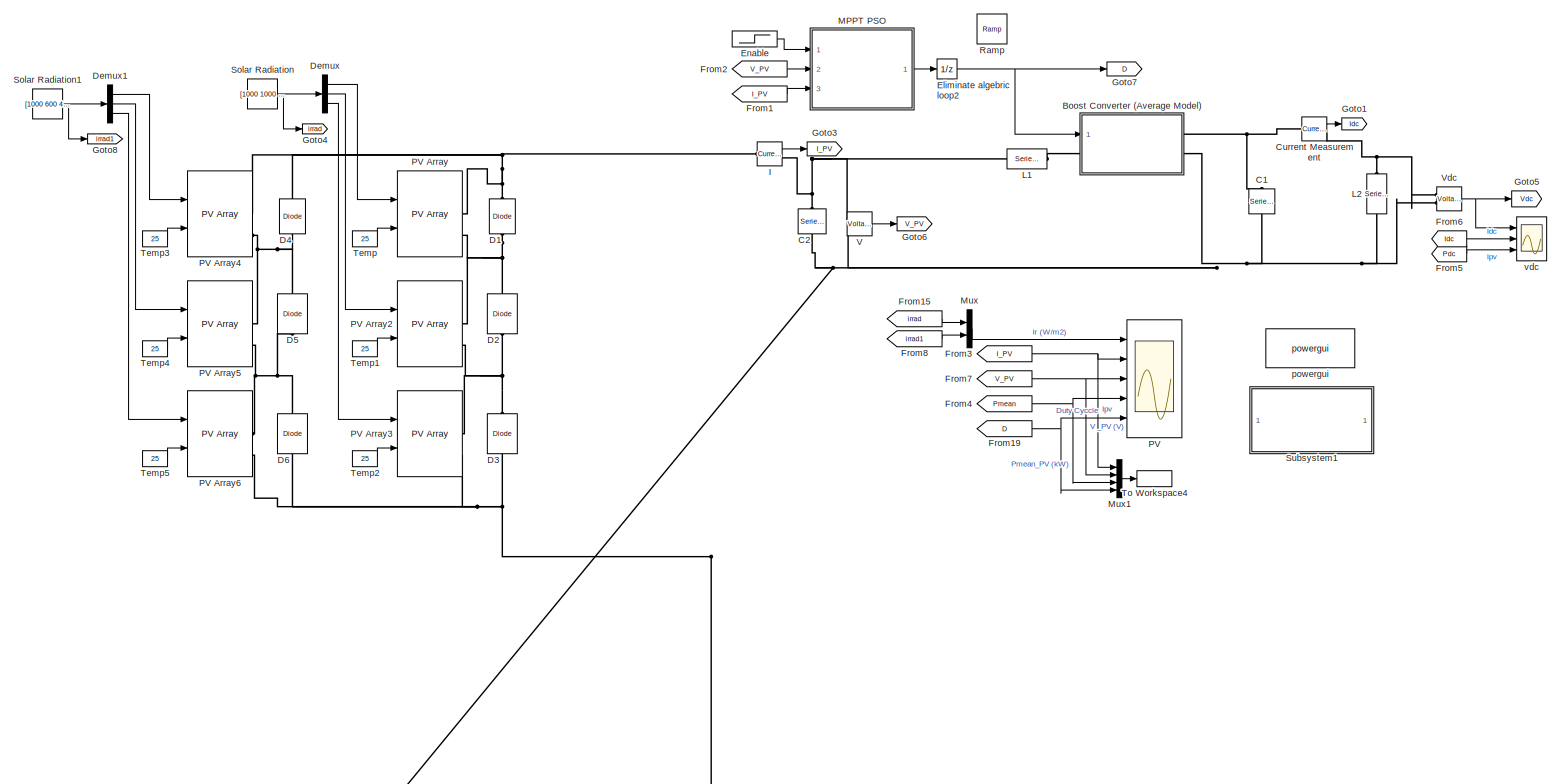
[diagram: root canvas - part 1/1, most of the canvas]
MODEL slx_ef682e9ec535
KIND model
CONFIG AbsTol = auto
CONFIG EnableMultiTasking = off
CONFIG FixedStep = auto
CONFIG MaxStep = auto
CONFIG MinStep = auto
CONFIG PreLoadFcn = Ts_Power=50e-6;\nTs_Control=100e-6;\n\n\n
CONFIG RelTol = 1e-8
CONFIG SampleTimeConstraint = Unconstrained
CONFIG Solver = VariableStepAuto
CONFIG SolverName = VariableStepAuto
CONFIG StartTime = 0.0
CONFIG StopFcn = clear C\nC(1,:)={'Iterac',saveIte(1,1),saveIte(1,2),saveIte(1,3),saveIte(1,4)};\nC(2,:)={'Time (sec)',saveIte(2,1),saveIte(2,2),saveIte(2,3),saveIte(2,4)};\nC(3,:)={'Pmax',saveIte(3,1),saveIte(3,2),saveIte(3,3),saveIte(3,4)};\nC(4,:)={'Duty',saveIte(4,1),saveIte(4,2),saveIte(4,3),saveIte(4,4)};\nC(5,:)={'When',saveIte(5,1)*0.1,saveIte(5,2)*0.1,saveIte(5,3)*0.1,saveIte(5,4)*0.1};\nC(6,:)={'Tolerac',saveI...<+61ch>
CONFIG StopTime = 5
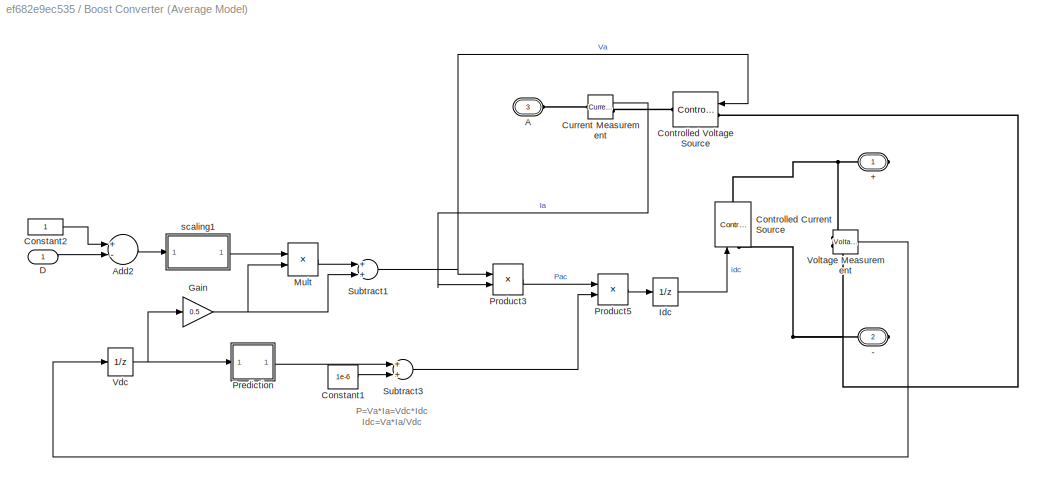
BLOCK [SubSystem] Boost Converter (Average Model)
  Ports = [1, 0, 0, 0, 0, 1, 2]
  RequestExecContextInheritance = off
BLOCK [PMIOPort] Boost Converter (Average Model)/+
  Side = Right
  Tag = PMCPort
BLOCK [PMIOPort] Boost Converter (Average Model)/-
  Port = 2
  Side = Right
  Tag = PMCPort
BLOCK [PMIOPort] Boost Converter (Average Model)/A
  Port = 3
  Side = Left
  Tag = PMCPort
BLOCK [Sum] Boost Converter (Average Model)/Add2
  InputSameDT = off
  Inputs = +-
  OutDataTypeStr = Inherit: Inherit via internal rule
  Ports = [2, 1]
  SaturateOnIntegerOverflow = off
BLOCK [Constant] Boost Converter (Average Model)/Constant1
  Value = 1e-6
BLOCK [Constant] Boost Converter (Average Model)/Constant2
BLOCK [Reference] Boost Converter (Average Model)/Controlled Current Source  REF=powerlib/Electrical
Sources/Controlled Current Source
  Ports = [1, 0, 0, 0, 0, 1, 1]
  SourceBlock = powerlib/Electrical\nSources/Controlled Current Source
  SourceProductBaseCode = PS
  SourceProductName = Simscape Power Systems
  SourceType = Controlled Current Source
BLOCK [Reference] Boost Converter (Average Model)/Controlled Voltage Source  REF=powerlib/Electrical
Sources/Controlled Voltage Source
  Ports = [1, 0, 0, 0, 0, 1, 1]
  SourceBlock = powerlib/Electrical\nSources/Controlled Voltage Source
  SourceProductBaseCode = PS
  SourceProductName = Simscape Power Systems
  SourceType = Controlled Voltage Source
BLOCK [Reference] Boost Converter (Average Model)/Current Measurement  REF=powerlib/Measurements/Current Measurement
  Ports = [0, 1, 0, 0, 0, 1, 1]
  SourceBlock = powerlib/Measurements/Current Measurement
  SourceProductBaseCode = PS
  SourceProductName = Simscape Power Systems
  SourceType = Current Measurement
BLOCK [Inport] Boost Converter (Average Model)/D
  IconDisplay = Port number
BLOCK [Gain] Boost Converter (Average Model)/Gain
  Gain = 0.5
  OutDataTypeStr = Inherit: Inherit via internal rule
  ParamDataTypeStr = Inherit: Inherit via internal rule
  SaturateOnIntegerOverflow = off
BLOCK [UnitDelay] Boost Converter (Average Model)/Idc
  SampleTime = Ts
BLOCK [Product] Boost Converter (Average Model)/Mult
  InputSameDT = off
  Inputs = **
  OutDataTypeStr = Inherit: Inherit via internal rule
  Ports = [2, 1]
  RndMeth = Floor
  SaturateOnIntegerOverflow = off
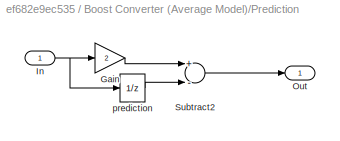
BLOCK [SubSystem] Boost Converter (Average Model)/Prediction
  Ports = [1, 1]
  RequestExecContextInheritance = off
BLOCK [Gain] Boost Converter (Average Model)/Prediction/Gain
  Gain = 2
  OutDataTypeStr = Inherit: Inherit via internal rule
  ParamDataTypeStr = Inherit: Inherit via internal rule
  SaturateOnIntegerOverflow = off
BLOCK [Inport] Boost Converter (Average Model)/Prediction/In
  IconDisplay = Port number
BLOCK [Outport] Boost Converter (Average Model)/Prediction/Out
  IconDisplay = Port number
BLOCK [Sum] Boost Converter (Average Model)/Prediction/Subtract2
  InputSameDT = off
  Inputs = +-
  OutDataTypeStr = Inherit: Inherit via internal rule
  Ports = [2, 1]
  SaturateOnIntegerOverflow = off
BLOCK [UnitDelay] Boost Converter (Average Model)/Prediction/prediction
  SampleTime = Ts
BLOCK [Product] Boost Converter (Average Model)/Product3
  InputSameDT = off
  OutDataTypeStr = Inherit: Inherit via internal rule
  Ports = [2, 1]
  SaturateOnIntegerOverflow = off
BLOCK [Product] Boost Converter (Average Model)/Product5
  InputSameDT = off
  Inputs = */
  OutDataTypeStr = Inherit: Inherit via internal rule
  Ports = [2, 1]
  SaturateOnIntegerOverflow = off
BLOCK [Sum] Boost Converter (Average Model)/Subtract1
  InputSameDT = off
  OutDataTypeStr = Inherit: Inherit via internal rule
  Ports = [2, 1]
  SaturateOnIntegerOverflow = off
BLOCK [Sum] Boost Converter (Average Model)/Subtract3
  InputSameDT = off
  OutDataTypeStr = Inherit: Inherit via internal rule
  Ports = [2, 1]
  SaturateOnIntegerOverflow = off
BLOCK [UnitDelay] Boost Converter (Average Model)/Vdc
  SampleTime = Ts
BLOCK [Reference] Boost Converter (Average Model)/Voltage Measurement  REF=powerlib/Measurements/Voltage Measurement
  Ports = [0, 1, 0, 0, 0, 2]
  SourceBlock = powerlib/Measurements/Voltage Measurement
  SourceProductBaseCode = PS
  SourceProductName = Simscape Power Systems
  SourceType = Voltage Measurement
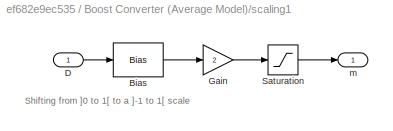
BLOCK [SubSystem] Boost Converter (Average Model)/scaling1
  Ports = [1, 1]
  RequestExecContextInheritance = off
BLOCK [Bias] Boost Converter (Average Model)/scaling1/Bias
  Bias = -0.5
  SaturateOnIntegerOverflow = off
BLOCK [Inport] Boost Converter (Average Model)/scaling1/D
  IconDisplay = Port number
BLOCK [Gain] Boost Converter (Average Model)/scaling1/Gain
  Gain = 2
  OutDataTypeStr = Inherit: Inherit via internal rule
  ParamDataTypeStr = Inherit: Inherit via internal rule
  SaturateOnIntegerOverflow = off
BLOCK [Saturate] Boost Converter (Average Model)/scaling1/Saturation
  InputPortMap = u0
  LowerLimit = -1
  Ports = [1, 1]
  UpperLimit = 1
BLOCK [Outport] Boost Converter (Average Model)/scaling1/m
  IconDisplay = Port number
BLOCK [Reference] C1  REF=powerlib/Elements/Series RLC Branch
  AttributesFormatString = \n
  Ports = [0, 0, 0, 0, 0, 1, 1]
  SourceBlock = powerlib/Elements/Series RLC Branch
  SourceProductBaseCode = PS
  SourceProductName = Simscape Power Systems
  SourceType = Series RLC Branch
BLOCK [Reference] C2  REF=powerlib/Elements/Series RLC Branch
  AttributesFormatString = \n
  Ports = [0, 0, 0, 0, 0, 1, 1]
  SourceBlock = powerlib/Elements/Series RLC Branch
  SourceProductBaseCode = PS
  SourceProductName = Simscape Power Systems
  SourceType = Series RLC Branch
BLOCK [Reference] Current Measurement  REF=powerlib/Measurements/Current Measurement
  Ports = [0, 1, 0, 0, 0, 1, 1]
  SourceBlock = powerlib/Measurements/Current Measurement
  SourceProductBaseCode = PS
  SourceProductName = Simscape Power Systems
  SourceType = Current Measurement
  UserDataPersistent = on
BLOCK [Reference] D1  REF=powerlib/Power
Electronics/Diode
  Ports = [0, 0, 0, 0, 0, 1, 1]
  SourceBlock = powerlib/Power\nElectronics/Diode
  SourceProductBaseCode = PS
  SourceProductName = Simscape Power Systems
  SourceType = Diode
BLOCK [Reference] D2  REF=powerlib/Power
Electronics/Diode
  Ports = [0, 0, 0, 0, 0, 1, 1]
  SourceBlock = powerlib/Power\nElectronics/Diode
  SourceProductBaseCode = PS
  SourceProductName = Simscape Power Systems
  SourceType = Diode
BLOCK [Reference] D3  REF=powerlib/Power
Electronics/Diode
  Ports = [0, 0, 0, 0, 0, 1, 1]
  SourceBlock = powerlib/Power\nElectronics/Diode
  SourceProductBaseCode = PS
  SourceProductName = Simscape Power Systems
  SourceType = Diode
BLOCK [Reference] D4  REF=powerlib/Power
Electronics/Diode
  Ports = [0, 0, 0, 0, 0, 1, 1]
  SourceBlock = powerlib/Power\nElectronics/Diode
  SourceProductBaseCode = PS
  SourceProductName = Simscape Power Systems
  SourceType = Diode
BLOCK [Reference] D5  REF=powerlib/Power
Electronics/Diode
  Ports = [0, 0, 0, 0, 0, 1, 1]
  SourceBlock = powerlib/Power\nElectronics/Diode
  SourceProductBaseCode = PS
  SourceProductName = Simscape Power Systems
  SourceType = Diode
BLOCK [Reference] D6  REF=powerlib/Power
Electronics/Diode
  Ports = [0, 0, 0, 0, 0, 1, 1]
  SourceBlock = powerlib/Power\nElectronics/Diode
  SourceProductBaseCode = PS
  SourceProductName = Simscape Power Systems
  SourceType = Diode
BLOCK [Demux] Demux
  DisplayOption = bar
  Outputs = 3
  Ports = [1, 3]
BLOCK [Demux] Demux1
  DisplayOption = bar
  Outputs = 3
  Ports = [1, 3]
BLOCK [UnitDelay] Eliminate algebric loop2
  InputProcessing = Elements as channels (sample based)
  SampleTime = Ts_Control
BLOCK [Step] Enable
  SampleTime = 0
  Time = 0.01
BLOCK [From] From1
  CloseFcn = tagdialog Close
  GotoTag = I_PV
  TagVisibility = global
BLOCK [From] From15
  CloseFcn = tagdialog Close
  GotoTag = irrad
  TagVisibility = global
BLOCK [From] From19
  CloseFcn = tagdialog Close
  GotoTag = D
  TagVisibility = global
BLOCK [From] From2
  CloseFcn = tagdialog Close
  GotoTag = V_PV
  TagVisibility = global
BLOCK [From] From3
  CloseFcn = tagdialog Close
  GotoTag = I_PV
  TagVisibility = global
BLOCK [From] From4
  CloseFcn = tagdialog Close
  GotoTag = Pmean
  TagVisibility = global
BLOCK [From] From5
  CloseFcn = tagdialog Close
  Commented = on
  GotoTag = Pdc
  TagVisibility = global
BLOCK [From] From6
  CloseFcn = tagdialog Close
  Commented = on
  GotoTag = Idc
  TagVisibility = global
BLOCK [From] From7
  CloseFcn = tagdialog Close
  GotoTag = V_PV
  TagVisibility = global
BLOCK [From] From8
  CloseFcn = tagdialog Close
  GotoTag = irrad1
  TagVisibility = global
BLOCK [Goto] Goto1
  GotoTag = Idc
  TagVisibility = global
BLOCK [Goto] Goto3
  GotoTag = I_PV
  TagVisibility = global
BLOCK [Goto] Goto4
  GotoTag = irrad
  TagVisibility = global
BLOCK [Goto] Goto5
  Commented = on
  GotoTag = Vdc
  TagVisibility = global
BLOCK [Goto] Goto6
  GotoTag = V_PV
  TagVisibility = global
BLOCK [Goto] Goto7
  GotoTag = D
  TagVisibility = global
BLOCK [Goto] Goto8
  GotoTag = irrad1
  TagVisibility = global
BLOCK [Reference] I  REF=powerlib/Measurements/Current Measurement
  Ports = [0, 1, 0, 0, 0, 1, 1]
  SourceBlock = powerlib/Measurements/Current Measurement
  SourceProductBaseCode = PS
  SourceProductName = Simscape Power Systems
  SourceType = Current Measurement
  UserDataPersistent = on
BLOCK [Reference] L1  REF=powerlib/Elements/Series RLC Branch
  Ports = [0, 0, 0, 0, 0, 1, 1]
  SourceBlock = powerlib/Elements/Series RLC Branch
  SourceProductBaseCode = PS
  SourceProductName = Simscape Power Systems
  SourceType = Series RLC Branch
BLOCK [Reference] L2  REF=powerlib/Elements/Series RLC Branch
  Ports = [0, 0, 0, 0, 0, 1, 1]
  SourceBlock = powerlib/Elements/Series RLC Branch
  SourceProductBaseCode = PS
  SourceProductName = Simscape Power Systems
  SourceType = Series RLC Branch
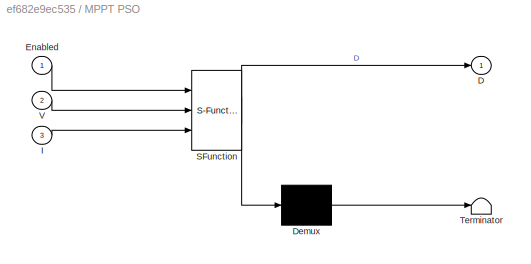
BLOCK [SubSystem] MPPT PSO 
  ErrorFcn = Stateflow.Translate.translate
  PermitHierarchicalResolution = ExplicitOnly
  Ports = [3, 1]
  RequestExecContextInheritance = off
  SFBlockType = MATLAB Function
  SystemSampleTime = 0.1
  TreatAsAtomicUnit = on
BLOCK [Demux] MPPT PSO / Demux 
  Outputs = 1
  Ports = [1, 1]
BLOCK [S-Function] MPPT PSO / SFunction 
  EnableBusSupport = on
  FunctionName = sf_sfun
  PortCounts = [3 2]
  Ports = [3, 2]
  SFcnIsStateOwnerBlock = off
  SFunctionDeploymentMode = off
  Tag = Stateflow S-Function PStest 4
BLOCK [Terminator] MPPT PSO / Terminator 
BLOCK [Outport] MPPT PSO /D
  IconDisplay = Port number
BLOCK [Inport] MPPT PSO /Enabled
  IconDisplay = Port number
BLOCK [Inport] MPPT PSO /I
  IconDisplay = Port number
  Port = 3
BLOCK [Inport] MPPT PSO /V
  IconDisplay = Port number
  Port = 2
BLOCK [Mux] Mux
  DisplayOption = bar
  Inputs = 2
  Ports = [2, 1]
BLOCK [Mux] Mux1
  DisplayOption = bar
  Ports = [4, 1]
BLOCK [Scope] PV
  Floating = off
  NumInputPorts = 5
  Ports = [5]
  ScopeSpecificationString = Simulink.scopes.TimeScopeBlockCfg('CurrentConfiguration', extmgr.ConfigurationSet(extmgr.Configuration('Core','General UI',true),extmgr.Configuration('Core','Source UI',true),extmgr.Configuration('Sources','WiredSimulink',true,'DataLoggingSaveFormat','StructureWithTime','DataLoggingDecimation','20','DataLoggingDecimateData',true,'DataLoggingVariableName','Sal'),extmgr.Configuration('Visuals','Time...<+4463ch>
BLOCK [Reference] PV Array  REF=re_lib/Solar/PV Array
  Ports = [2, 1, 0, 0, 0, 0, 2]
  SourceBlock = re_lib/Solar/PV Array
  SourceProductBaseCode = PS
  SourceProductName = Simscape Power Systems
  SourceType = PV array
BLOCK [Reference] PV Array2  REF=re_lib/Solar/PV Array
  Ports = [2, 1, 0, 0, 0, 0, 2]
  SourceBlock = re_lib/Solar/PV Array
  SourceProductBaseCode = PS
  SourceProductName = Simscape Power Systems
  SourceType = PV array
BLOCK [Reference] PV Array3  REF=re_lib/Solar/PV Array
  Ports = [2, 1, 0, 0, 0, 0, 2]
  SourceBlock = re_lib/Solar/PV Array
  SourceProductBaseCode = PS
  SourceProductName = Simscape Power Systems
  SourceType = PV array
BLOCK [Reference] PV Array4  REF=re_lib/Solar/PV Array
  Ports = [2, 1, 0, 0, 0, 0, 2]
  SourceBlock = re_lib/Solar/PV Array
  SourceProductBaseCode = PS
  SourceProductName = Simscape Power Systems
  SourceType = PV array
BLOCK [Reference] PV Array5  REF=re_lib/Solar/PV Array
  Ports = [2, 1, 0, 0, 0, 0, 2]
  SourceBlock = re_lib/Solar/PV Array
  SourceProductBaseCode = PS
  SourceProductName = Simscape Power Systems
  SourceType = PV array
BLOCK [Reference] PV Array6  REF=re_lib/Solar/PV Array
  Ports = [2, 1, 0, 0, 0, 0, 2]
  SourceBlock = re_lib/Solar/PV Array
  SourceProductBaseCode = PS
  SourceProductName = Simscape Power Systems
  SourceType = PV array
BLOCK [Reference] Ramp  REF=simulink/Sources/Ramp
  Ports = [0, 1]
  SourceBlock = simulink/Sources/Ramp
  SourceProductBaseCode = SL
  SourceProductName = Simulink
  SourceType = Ramp
BLOCK [Constant] Solar Radiation
  Value = [1000 1000 400]
BLOCK [Constant] Solar Radiation1
  Value = [1000 600 400]
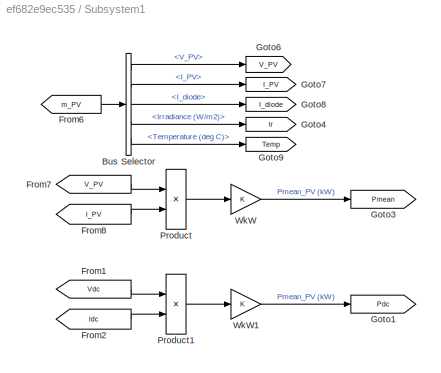
BLOCK [SubSystem] Subsystem1
  Ports = []
  RequestExecContextInheritance = off
BLOCK [BusSelector] Subsystem1/Bus Selector
  Commented = on
  OutputAsBus = off
  OutputSignals = V_PV,I_PV,I_diode,Irradiance (W/m2),Temperature (deg C)
  Ports = [1, 5]
BLOCK [From] Subsystem1/From1
  GotoTag = Vdc
BLOCK [From] Subsystem1/From2
  GotoTag = Idc
  TagVisibility = global
BLOCK [From] Subsystem1/From6
  Commented = on
  GotoTag = m_PV
  TagVisibility = global
BLOCK [From] Subsystem1/From7
  GotoTag = V_PV
  TagVisibility = global
BLOCK [From] Subsystem1/From8
  GotoTag = I_PV
  TagVisibility = global
BLOCK [Goto] Subsystem1/Goto1
  GotoTag = Pdc
  TagVisibility = global
BLOCK [Goto] Subsystem1/Goto3
  GotoTag = Pmean
  TagVisibility = global
BLOCK [Goto] Subsystem1/Goto4
  Commented = on
  GotoTag = Ir
  TagVisibility = global
BLOCK [Goto] Subsystem1/Goto6
  Commented = on
  GotoTag = V_PV
  TagVisibility = global
BLOCK [Goto] Subsystem1/Goto7
  Commented = on
  GotoTag = I_PV
  TagVisibility = global
BLOCK [Goto] Subsystem1/Goto8
  Commented = on
  GotoTag = I_diode
  TagVisibility = global
BLOCK [Goto] Subsystem1/Goto9
  Commented = on
  GotoTag = Temp
  TagVisibility = global
BLOCK [Product] Subsystem1/Product
  InputSameDT = off
  OutDataTypeStr = Inherit: Inherit via internal rule
  Ports = [2, 1]
  SaturateOnIntegerOverflow = off
BLOCK [Product] Subsystem1/Product1
  InputSameDT = off
  OutDataTypeStr = Inherit: Inherit via internal rule
  Ports = [2, 1]
  SaturateOnIntegerOverflow = off
BLOCK [Gain] Subsystem1/WkW
  OutDataTypeStr = Inherit: Inherit via internal rule
  ParamDataTypeStr = Inherit: Inherit via internal rule
  SaturateOnIntegerOverflow = off
BLOCK [Gain] Subsystem1/WkW1
  OutDataTypeStr = Inherit: Inherit via internal rule
  ParamDataTypeStr = Inherit: Inherit via internal rule
  SaturateOnIntegerOverflow = off
BLOCK [Constant] Temp
  Value = 25
BLOCK [Constant] Temp1
  Value = 25
BLOCK [Constant] Temp2
  Value = 25
BLOCK [Constant] Temp3
  Value = 25
BLOCK [Constant] Temp4
  Value = 25
BLOCK [Constant] Temp5
  Value = 25
BLOCK [ToWorkspace] To Workspace4
  Decimation = 10
  FixptAsFi = on
  MaxDataPoints = inf
  Ports = [1]
  SampleTime = 50e-6
  Save2DSignal = 3-D array (concatenate along third dimension)
  SaveFormat = Structure With Time
  VariableName = Salida
BLOCK [Reference] V  REF=powerlib/Measurements/Voltage Measurement
  Ports = [0, 1, 0, 0, 0, 2]
  SourceBlock = powerlib/Measurements/Voltage Measurement
  SourceProductBaseCode = PS
  SourceProductName = Simscape Power Systems
  SourceType = Voltage Measurement
  UserDataPersistent = on
BLOCK [Reference] Vdc   REF=powerlib/Measurements/Voltage Measurement
  AttributesFormatString = \n
  Commented = on
  Ports = [0, 1, 0, 0, 0, 2]
  SourceBlock = powerlib/Measurements/Voltage Measurement
  SourceProductBaseCode = PS
  SourceProductName = Simscape Power Systems
  SourceType = Voltage Measurement
  Tag = PoWeRsYsTeMmEaSuReMeNt
BLOCK [Reference] powergui  REF=powerlib/powergui
  Ports = []
  Priority = 1
  SourceBlock = powerlib/powergui
  SourceProductBaseCode = PS
  SourceProductName = Simscape Power Systems
  SourceType = PSB option menu block
BLOCK [Scope] vdc
  Commented = on
  Floating = off
  NumInputPorts = 3
  Ports = [3]
  ScopeSpecificationString = Simulink.scopes.TimeScopeBlockCfg('CurrentConfiguration', extmgr.ConfigurationSet(extmgr.Configuration('Core','General UI',true),extmgr.Configuration('Core','Source UI',true),extmgr.Configuration('Sources','WiredSimulink',true,'DataLoggingSaveFormat','Structure','DataLoggingDecimation','1','DataLoggingDecimateData',true,'DataLoggingVariableName','Vdc1','DataLogging',true),extmgr.Configuration('Vis...<+2895ch>
ANNOTATION Boost Converter (Average Model): P=Va*Ia=Vdc*Idc Idc=Va*Ia/Vdc
ANNOTATION Boost Converter (Average Model)/scaling1: Shifting from ]0 to 1[ to a ]-1 to 1[ scale
LINE Boost Converter (Average Model)/Add2:1 -> Boost Converter (Average Model)/scaling1:1
LINE Boost Converter (Average Model)/Constant1:1 -> Boost Converter (Average Model)/Subtract3:2
LINE Boost Converter (Average Model)/Constant2:1 -> Boost Converter (Average Model)/Add2:1
LINE Boost Converter (Average Model)/Current Measurement:1 -> Boost Converter (Average Model)/Product3:2
LINE Boost Converter (Average Model)/D:1 -> Boost Converter (Average Model)/Add2:2
NET Boost Converter (Average Model)/Gain:1 -> Boost Converter (Average Model)/Mult:2, Boost Converter (Average Model)/Subtract1:2
LINE Boost Converter (Average Model)/Idc:1 -> Boost Converter (Average Model)/Controlled Current Source:1
LINE Boost Converter (Average Model)/Mult:1 -> Boost Converter (Average Model)/Subtract1:1
LINE Boost Converter (Average Model)/Prediction/Gain:1 -> Boost Converter (Average Model)/Prediction/Subtract2:1
NET Boost Converter (Average Model)/Prediction/In:1 -> Boost Converter (Average Model)/Prediction/Gain:1, Boost Converter (Average Model)/Prediction/prediction:1
LINE Boost Converter (Average Model)/Prediction/Subtract2:1 -> Boost Converter (Average Model)/Prediction/Out:1
LINE Boost Converter (Average Model)/Prediction/prediction:1 -> Boost Converter (Average Model)/Prediction/Subtract2:2
LINE Boost Converter (Average Model)/Prediction:1 -> Boost Converter (Average Model)/Subtract3:1
LINE Boost Converter (Average Model)/Product3:1 -> Boost Converter (Average Model)/Product5:1
LINE Boost Converter (Average Model)/Product5:1 -> Boost Converter (Average Model)/Idc:1
NET Boost Converter (Average Model)/Subtract1:1 -> Boost Converter (Average Model)/Controlled Voltage Source:1, Boost Converter (Average Model)/Product3:1
LINE Boost Converter (Average Model)/Subtract3:1 -> Boost Converter (Average Model)/Product5:2
NET Boost Converter (Average Model)/Vdc:1 -> Boost Converter (Average Model)/Gain:1, Boost Converter (Average Model)/Prediction:1
LINE Boost Converter (Average Model)/Voltage Measurement:1 -> Boost Converter (Average Model)/Vdc:1
LINE Boost Converter (Average Model)/scaling1/Bias:1 -> Boost Converter (Average Model)/scaling1/Gain:1
LINE Boost Converter (Average Model)/scaling1/D:1 -> Boost Converter (Average Model)/scaling1/Bias:1
LINE Boost Converter (Average Model)/scaling1/Gain:1 -> Boost Converter (Average Model)/scaling1/Saturation:1
LINE Boost Converter (Average Model)/scaling1/Saturation:1 -> Boost Converter (Average Model)/scaling1/m:1
LINE Boost Converter (Average Model)/scaling1:1 -> Boost Converter (Average Model)/Mult:1
LINE Current Measurement:1 -> Goto1:1
LINE Demux1:1 -> PV Array4:1
LINE Demux1:2 -> PV Array5:1
LINE Demux1:3 -> PV Array6:1
LINE Demux:1 -> PV Array:1
LINE Demux:2 -> PV Array2:1
LINE Demux:3 -> PV Array3:1
NET Eliminate algebric loop2:1 -> Boost Converter (Average Model):1, Goto7:1
LINE Enable:1 -> MPPT PSO :1
LINE From15:1 -> Mux:1
NET From19:1 -> Mux1:4, PV:5
LINE From1:1 -> MPPT PSO :3
LINE From2:1 -> MPPT PSO :2
NET From3:1 -> Mux1:1, PV:2
NET From4:1 -> Mux1:3, PV:4
LINE From5:1 -> vdc:3
LINE From6:1 -> vdc:2
NET From7:1 -> Mux1:2, PV:3
LINE From8:1 -> Mux:2
LINE I:1 -> Goto3:1
LINE MPPT PSO :1 -> Eliminate algebric loop2:1
LINE Mux1:1 -> To Workspace4:1
LINE Mux:1 -> PV:1
NET Solar Radiation1:1 -> Demux1:1, Goto8:1
NET Solar Radiation:1 -> Demux:1, Goto4:1
LINE Subsystem1/Bus Selector:1 -> Subsystem1/Goto6:1
LINE Subsystem1/Bus Selector:2 -> Subsystem1/Goto7:1
LINE Subsystem1/Bus Selector:3 -> Subsystem1/Goto8:1
LINE Subsystem1/Bus Selector:4 -> Subsystem1/Goto4:1
LINE Subsystem1/Bus Selector:5 -> Subsystem1/Goto9:1
LINE Subsystem1/From1:1 -> Subsystem1/Product1:1
LINE Subsystem1/From2:1 -> Subsystem1/Product1:2
LINE Subsystem1/From6:1 -> Subsystem1/Bus Selector:1
LINE Subsystem1/From7:1 -> Subsystem1/Product:1
LINE Subsystem1/From8:1 -> Subsystem1/Product:2
LINE Subsystem1/Product1:1 -> Subsystem1/WkW1:1
LINE Subsystem1/Product:1 -> Subsystem1/WkW:1
LINE Subsystem1/WkW1:1 -> Subsystem1/Goto1:1
LINE Subsystem1/WkW:1 -> Subsystem1/Goto3:1
LINE Temp1:1 -> PV Array2:2
LINE Temp2:1 -> PV Array3:2
LINE Temp3:1 -> PV Array4:2
LINE Temp4:1 -> PV Array5:2
LINE Temp5:1 -> PV Array6:2
LINE Temp:1 -> PV Array:2
LINE V:1 -> Goto6:1
NET Vdc :1 -> Goto5:1, vdc:1
PNET net1: Boost Converter (Average Model)/+:RConn1 -- Boost Converter (Average Model)/Controlled Current Source:RConn1 -- Boost Converter (Average Model)/Voltage Measurement:LConn1
PNET net2: Boost Converter (Average Model)/-:RConn1 -- Boost Converter (Average Model)/Controlled Current Source:LConn1 -- Boost Converter (Average Model)/Controlled Voltage Source:LConn1 -- Boost Converter (Average Model)/Voltage Measurement:LConn2
PLINE Boost Converter (Average Model)/A:RConn1 -- Boost Converter (Average Model)/Current Measurement:LConn1
PLINE Boost Converter (Average Model)/Controlled Voltage Source:RConn1 -- Boost Converter (Average Model)/Current Measurement:RConn1
PLINE Boost Converter (Average Model):LConn1 -- L1:RConn1
PNET net3: Boost Converter (Average Model):RConn1 -- C1:LConn1 -- Current Measurement:LConn1
PNET net4: Boost Converter (Average Model):RConn2 -- C1:RConn1 -- C2:RConn1 -- D3:LConn1 -- D6:LConn1 -- L2:RConn1 -- PV Array3:RConn2 -- PV Array6:RConn2 -- V:LConn2 -- Vdc :LConn2
PNET net5: C2:LConn1 -- I:RConn1 -- L1:LConn1 -- V:LConn1
PNET net6: Current Measurement:RConn1 -- L2:LConn1 -- Vdc :LConn1
PNET net7: D1:LConn1 -- D2:RConn1 -- PV Array2:RConn1 -- PV Array:RConn2
PNET net8: D1:RConn1 -- D4:RConn1 -- I:LConn1 -- PV Array4:RConn1 -- PV Array:RConn1
PNET net9: D2:LConn1 -- D3:RConn1 -- PV Array2:RConn2 -- PV Array3:RConn1
PNET net10: D4:LConn1 -- D5:RConn1 -- PV Array4:RConn2 -- PV Array5:RConn1
PNET net11: D5:LConn1 -- D6:RConn1 -- PV Array5:RConn2 -- PV Array6:RConn1
note: NET lines group one-source signal fan-out (src -> all destinations, sorted); 1:1 wires keep LINE; PNET lines group multi-terminal physical nets as a canonical sorted terminal list (undirected conserving connections); 2-terminal nets keep the pairwise PLINE form
CHART MPPT PSO
  states=1 transitions=1
  STATE_LABEL 'eML_blk_kernel()'
  STATE_LABEL "SCRIPT:\nfunction D = PandO(Enabled, V, I)\n% coder.extrinsic('evaluar')\n% [duty,P]=evaluar(20);\n% MPPT controller based on the Perturb & Observe algorithm.\n% D output = Duty cycle of the boost converter (value between 0 and 1)\n% Enabled input = 1 to enable the MPPT controller\n% V input = PV array terminal voltage (V)\n% I input = PV array current (A)\n% Param input:\nDinit = 0.5;  %Initial value for D...<+689ch>"
